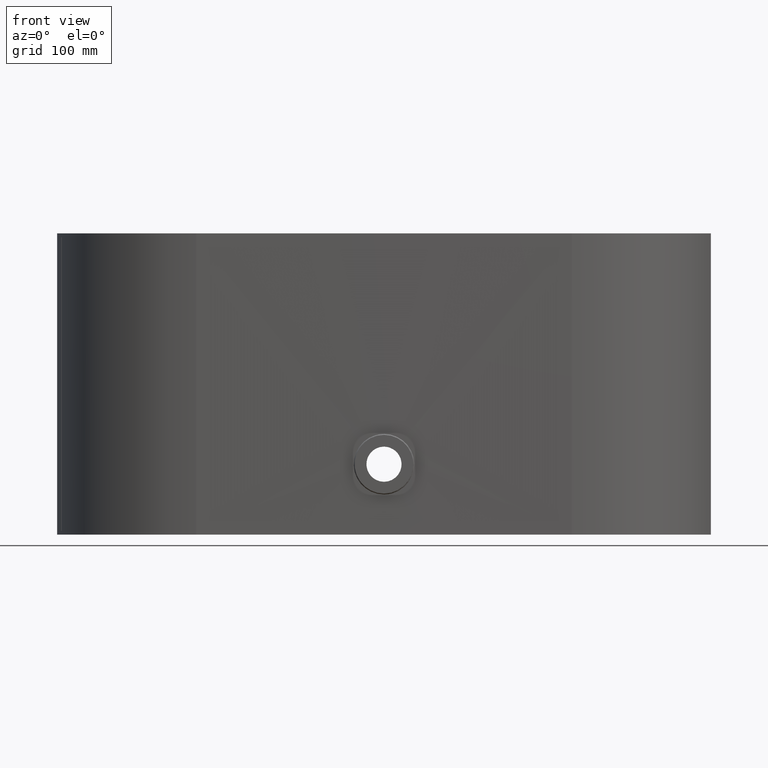
[diagram: clean part render]
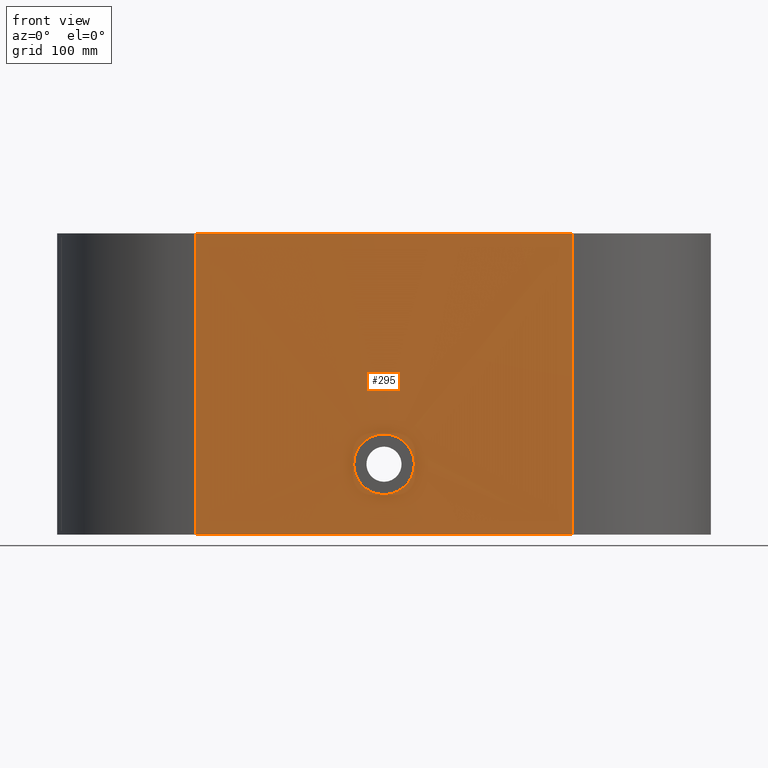
[diagram: same view with one face highlighted and labeled with its STEP entity id]
A machine part, front view. The second image highlights one B-rep face of the part: STEP entity #295.
In plain terms, the highlighted cylindrical surface (partial cylindrical patch) has radius 23055.6 mm, axis along (0, 0, 1).
Its self-contained STEP definition (entity closure, byte-faithful):
#9 = CARTESIAN_POINT ( 'NONE',  ( 38.70009875047286800, -149.9675199057542200, -1.244597046519988000 ) ) ;
#18 = CARTESIAN_POINT ( 'NONE',  ( 33.59199768303922400, -149.9755712169628300, 19.41157435358687200 ) ) ;
#101 = DIRECTION ( 'NONE',  ( 0.0000000000000000000, 0.0000000000000000000, 1.000000000000000000 ) ) ;
#158 = CARTESIAN_POINT ( 'NONE',  ( 10.62978009139014700, -149.9975575525250200, 37.23075293164738800 ) ) ;
#219 = CARTESIAN_POINT ( 'NONE',  ( 23.66206101838241700, -149.9879544328544500, -30.74615220908320300 ) ) ;
#233 = CARTESIAN_POINT ( 'NONE',  ( 21.02307596783754600, -149.9904211825721900, -32.51437475303873700 ) ) ;
#245 = CARTESIAN_POINT ( 'NONE',  ( 37.42746742628610700, -149.9696238641132600, -9.981412683385476800 ) ) ;
#253 = CIRCLE ( 'NONE', #1985, 23055.62499999943600 ) ;
#254 = CARTESIAN_POINT ( 'NONE',  ( 37.72035395886719300, -149.9691449443140000, 8.809400445550638300 ) ) ;
#260 = VERTEX_POINT ( 'NONE', #1451 ) ;
#295 = ADVANCED_FACE ( 'NONE', ( #2352, #2175 ), #1055, .T. ) ;
#297 = EDGE_LOOP ( 'NONE', ( #595, #1233 ) ) ;
#299 = CARTESIAN_POINT ( 'NONE',  ( 20.48389105736301700, -149.9909069869984300, -32.85674138711831200 ) ) ;
#391 = EDGE_CURVE ( 'NONE', #1151, #1462, #2634, .T. ) ;
#478 = CARTESIAN_POINT ( 'NONE',  ( 15.96774228296823000, -149.9944999937198100, 35.28950780525031700 ) ) ;
#485 = CARTESIAN_POINT ( 'NONE',  ( 19.38903103423919600, -149.9918537252613900, -33.51439714548857300 ) ) ;
#487 = EDGE_CURVE ( 'NONE', #1751, #1307, #707, .T. ) ;
#489 = CARTESIAN_POINT ( 'NONE',  ( 23.61936689673984800, -149.9879990428701100, 30.77966225824151500 ) ) ;
#499 = CARTESIAN_POINT ( 'NONE',  ( 33.61773540777270600, -149.9755333458815000, -19.36611166164674800 ) ) ;
#535 = B_SPLINE_CURVE_WITH_KNOTS ( 'NONE', 3,
 ( #984, #2411, #2402, #2401, #2397, #2392, #2391, #2388, #2384, #2380, #2379, #2376, #2375, #2373, #2368, #2364, #2361, #2358, #2357, #2354, #2353, #2349, #2346, #2345, #2340, #2339, #2333, #2328, #2325, #2323, #2319, #2310, #2303, #2298, #2294, #2292, #2291, #2288, #2285, #2370, #2387, #2394, #2410, #2419, #2280, #2275, #2272, #2268, #2264, #2261, #2259, #2256, #2255, #2248, #2243, #2242, #2236, #2235, #2234, #2231, #2227, #2224, #2218, #2215 ),
 .UNSPECIFIED., .F., .F.,
 ( 4, 2, 2, 2, 2, 2, 2, 2, 2, 2, 2, 2, 2, 2, 2, 2, 2, 2, 2, 2, 2, 2, 2, 2, 2, 2, 2, 2, 2, 2, 2, 4 ),
 ( 0.0000000000000000000, 0.007564771984882054900, 0.01134715797732308500, 0.01512954396976411700, 0.02269431595464616400, 0.02458550895086667300, 0.02647670194708717800, 0.03025908793952819500, 0.03782385992441021600, 0.03971505292063072500, 0.04160624591685124100, 0.04538863190929227900, 0.04917101790173331700, 0.05106221089795384000, 0.05295340389417435600, 0.06051817587905645300, 0.06430056187149750500, 0.06619175486771802800, 0.06808294786393855000, 0.07564771984882064100, 0.07753891284504115000, 0.07943010584126165800, 0.08321249183370270400, 0.09077726381858476600, 0.09455964981102579800, 0.09834203580346682900, 0.1021244217959078600, 0.1059068077883488800, 0.1134715797732309500, 0.1153627727694514500, 0.1172539657656719700, 0.1210363517581130200 ),
 .UNSPECIFIED. ) ;
#582 = CARTESIAN_POINT ( 'NONE',  ( 1.519356940613465500E-008, -149.9999999999977000, 38.71320343559543200 ) ) ;
#595 = ORIENTED_EDGE ( 'NONE', *, *, #391, .T. ) ;
#615 = CARTESIAN_POINT ( 'NONE',  ( 30.70796224879476100, -149.9795530304681100, 23.58434916725473600 ) ) ;
#638 = VECTOR ( 'NONE', #101, 1000.000000000000000 ) ;
#673 = CARTESIAN_POINT ( 'NONE',  ( -2.793754109194857500E-012, 22905.62499999944000, -90.00000000000000000 ) ) ;
#697 = CARTESIAN_POINT ( 'NONE',  ( 18.83568025470620500, -149.9923127158546400, -33.82836906262736700 ) ) ;
#701 = CARTESIAN_POINT ( 'NONE',  ( 36.85784744141761800, -149.9705393463563600, 11.86308020194943500 ) ) ;
#705 = CARTESIAN_POINT ( 'NONE',  ( 17.15828430605634500, -149.9936424138202800, -34.72676749214236500 ) ) ;
#707 = CIRCLE ( 'NONE', #746, 23055.62499999943600 ) ;
#709 = CARTESIAN_POINT ( 'NONE',  ( 2.526098702976564700, -149.9999999999960500, 38.71320343197760400 ) ) ;
#715 = CARTESIAN_POINT ( 'NONE',  ( 36.69358829448977100, -149.9708035321183100, -12.41046529277572400 ) ) ;
#720 = AXIS2_PLACEMENT_3D ( 'NONE', #2300, #3083, #2530 ) ;
#722 = CARTESIAN_POINT ( 'NONE',  ( 37.41281185787567400, -149.9696476992132300, 10.03683671424382400 ) ) ;
#731 = ORIENTED_EDGE ( 'NONE', *, *, #1257, .F. ) ;
#746 = AXIS2_PLACEMENT_3D ( 'NONE', #673, #977, #3064 ) ;
#788 = CARTESIAN_POINT ( 'NONE',  ( 240.1562457615603400, -148.7491862199910000, -75.00000000000000000 ) ) ;
#799 = DIRECTION ( 'NONE',  ( 1.000000000000000000, 0.0000000000000000000, 0.0000000000000000000 ) ) ;
#815 = CARTESIAN_POINT ( 'NONE',  ( 10.01712815719774100, -149.9978322024925300, 37.40031550402252900 ) ) ;
#842 = CARTESIAN_POINT ( 'NONE',  ( 18.78345653945534000, -149.9923553013226500, 33.85742342208160900 ) ) ;
#871 = CARTESIAN_POINT ( 'NONE',  ( -7.323706392903472600E-006, -149.9999999999993500, -38.71320343559465000 ) ) ;
#892 = EDGE_LOOP ( 'NONE', ( #1006, #731, #1927, #3183 ) ) ;
#906 = CARTESIAN_POINT ( 'NONE',  ( 38.40694456811215900, -149.9680104269498900, -5.034715578704307000 ) ) ;
#917 = CARTESIAN_POINT ( 'NONE',  ( 16.01680595868481700, -149.9944659358395100, -35.26745194409593200 ) ) ;
#930 = LINE ( 'NONE', #1924, #2873 ) ;
#934 = CARTESIAN_POINT ( 'NONE',  ( 38.59196354097537100, -149.9677012249769900, -3.146631064238883300 ) ) ;
#946 = CARTESIAN_POINT ( 'NONE',  ( 20.42775663394427700, -149.9909567586283600, 32.89165785392756900 ) ) ;
#977 = DIRECTION ( 'NONE',  ( 0.0000000000000000000, 0.0000000000000000000, 1.000000000000000000 ) ) ;
#984 = CARTESIAN_POINT ( 'NONE',  ( -7.323706392903472600E-006, -149.9999999999993500, -38.71320343559465000 ) ) ;
#1006 = ORIENTED_EDGE ( 'NONE', *, *, #1141, .T. ) ;
#1055 = CYLINDRICAL_SURFACE ( 'NONE', #720, 23055.62499999943600 ) ;
#1103 = CARTESIAN_POINT ( 'NONE',  ( 29.10023904703639300, -149.9816493803073700, 25.56530512351908900 ) ) ;
#1141 = EDGE_CURVE ( 'NONE', #1307, #1154, #1644, .T. ) ;
#1149 = DIRECTION ( 'NONE',  ( 0.0000000000000000000, 0.0000000000000000000, 1.000000000000000000 ) ) ;
#1150 = CARTESIAN_POINT ( 'NONE',  ( 13.68829826172756200, -149.9959659727756200, -36.23452762927841800 ) ) ;
#1151 = VERTEX_POINT ( 'NONE', #582 ) ;
#1154 = VERTEX_POINT ( 'NONE', #3133 ) ;
#1160 = CARTESIAN_POINT ( 'NONE',  ( 12.50136891935557400, -149.9966424617442400, -36.66116979377615300 ) ) ;
#1170 = CARTESIAN_POINT ( 'NONE',  ( 29.14002922969076400, -149.9815991699725000, -25.52017523834434000 ) ) ;
#1182 = CARTESIAN_POINT ( 'NONE',  ( 38.22253919924257600, -149.9683178500686400, -6.282360201004409300 ) ) ;
#1233 = ORIENTED_EDGE ( 'NONE', *, *, #1848, .T. ) ;
#1257 = EDGE_CURVE ( 'NONE', #260, #1154, #253, .T. ) ;
#1261 = DIRECTION ( 'NONE',  ( 0.0000000000000000000, 0.0000000000000000000, 1.000000000000000000 ) ) ;
#1307 = VERTEX_POINT ( 'NONE', #3165 ) ;
#1341 = CARTESIAN_POINT ( 'NONE',  ( 31.83256794526226200, -149.9780272918012500, 22.04283633453150400 ) ) ;
#1351 = CARTESIAN_POINT ( 'NONE',  ( 19.33567787279060100, -149.9918984988423700, 33.54522891487825100 ) ) ;
#1405 = CARTESIAN_POINT ( 'NONE',  ( 10.07574525624046300, -149.9978065984178700, -37.38456928639111300 ) ) ;
#1428 = CARTESIAN_POINT ( 'NONE',  ( 31.51520622484019900, -149.9784712514863000, -22.52082277710835000 ) ) ;
#1443 = CARTESIAN_POINT ( 'NONE',  ( 38.71270840744066500, -149.9674987157383700, 2.585388885612992300 ) ) ;
#1451 = CARTESIAN_POINT ( 'NONE',  ( -240.1562457615723400, -148.7491862200585900, 295.0000000000000600 ) ) ;
#1452 = CARTESIAN_POINT ( 'NONE',  ( 36.65663141122926300, -149.9708604051342000, 12.47101644016430400 ) ) ;
#1462 = VERTEX_POINT ( 'NONE', #871 ) ;
#1561 = CARTESIAN_POINT ( 'NONE',  ( 8.779374518811694700, -149.9983367527162800, 37.71005596464446100 ) ) ;
#1644 = LINE ( 'NONE', #788, #638 ) ;
#1665 = CARTESIAN_POINT ( 'NONE',  ( 10.68646196150927400, -149.9975313077004000, -37.21453572580580300 ) ) ;
#1668 = CARTESIAN_POINT ( 'NONE',  ( 30.31351182019831100, -149.9800754515093800, 24.08918575528392800 ) ) ;
#1676 = CARTESIAN_POINT ( 'NONE',  ( 8.842605592026952600, -149.9983125263807200, -37.69526394888069400 ) ) ;
#1687 = CARTESIAN_POINT ( 'NONE',  ( 30.76035911685208300, -149.9794942938005400, -23.54208113277727000 ) ) ;
#1702 = CARTESIAN_POINT ( 'NONE',  ( 38.46049833297507100, -149.9679261029059200, 5.098037327014398400 ) ) ;
#1711 = CARTESIAN_POINT ( 'NONE',  ( -240.1562457615723400, -148.7491862200585900, -90.00000000000000000 ) ) ;
#1751 = VERTEX_POINT ( 'NONE', #1711 ) ;
#1848 = EDGE_CURVE ( 'NONE', #1462, #1151, #535, .T. ) ;
#1924 = CARTESIAN_POINT ( 'NONE',  ( -240.1562457615723400, -148.7491862200585900, -75.00000000000000000 ) ) ;
#1927 = ORIENTED_EDGE ( 'NONE', *, *, #2283, .F. ) ;
#1941 = CARTESIAN_POINT ( 'NONE',  ( 8.218807206725983900, -149.9985435923509000, -37.83618327391141600 ) ) ;
#1943 = CARTESIAN_POINT ( 'NONE',  ( 35.99687692417562300, -149.9719002003263900, 14.26363340754511800 ) ) ;
#1950 = CARTESIAN_POINT ( 'NONE',  ( 34.80588015453804500, -149.9737481103390500, -17.14159885959053000 ) ) ;
#1985 = AXIS2_PLACEMENT_3D ( 'NONE', #2311, #1261, #799 ) ;
#2044 = CARTESIAN_POINT ( 'NONE',  ( 25.56988555353762000, -149.9858899989714600, 29.17737422127993300 ) ) ;
#2175 = FACE_OUTER_BOUND ( 'NONE', #892, .T. ) ;
#2198 = CARTESIAN_POINT ( 'NONE',  ( 5.088244096114534500, -149.9995745516446000, -38.46228407893001800 ) ) ;
#2213 = CARTESIAN_POINT ( 'NONE',  ( 37.73276247452313500, -149.9691246204196200, -8.755701830864081700 ) ) ;
#2215 = CARTESIAN_POINT ( 'NONE',  ( 1.519356940613465500E-008, -149.9999999999977000, 38.71320343559543200 ) ) ;
#2218 = CARTESIAN_POINT ( 'NONE',  ( -1.263359227450326700, -149.9999999999985500, 38.71320343740476500 ) ) ;
#2224 = CARTESIAN_POINT ( 'NONE',  ( -2.530633023885055600, -149.9998961675069300, 38.65152477326538600 ) ) ;
#2227 = CARTESIAN_POINT ( 'NONE',  ( -4.437614658125843500, -149.9995816994859000, 38.46335156583637600 ) ) ;
#2231 = CARTESIAN_POINT ( 'NONE',  ( -5.071612713073006900, -149.9994507589051400, 38.38487357039488000 ) ) ;
#2234 = CARTESIAN_POINT ( 'NONE',  ( -6.328692687994552200, -149.9991399649868200, 38.19775684143589700 ) ) ;
#2235 = CARTESIAN_POINT ( 'NONE',  ( -6.952963077411462600, -149.9989599240265100, 38.08900649112079200 ) ) ;
#2236 = CARTESIAN_POINT ( 'NONE',  ( -10.05333957114100100, -149.9979415490558700, 37.47062035787175200 ) ) ;
#2242 = CARTESIAN_POINT ( 'NONE',  ( -12.46707102033851200, -149.9967486655793000, 36.73904449895308500 ) ) ;
#2243 = CARTESIAN_POINT ( 'NONE',  ( -15.98640918941577600, -149.9944874815765300, 35.28138306292251500 ) ) ;
#2248 = CARTESIAN_POINT ( 'NONE',  ( -17.14726950186374300, -149.9936506783915000, 34.73213992189256800 ) ) ;
#2255 = CARTESIAN_POINT ( 'NONE',  ( -19.38667565979270400, -149.9918763962489300, 33.53378119428818100 ) ) ;
#2256 = CARTESIAN_POINT ( 'NONE',  ( -20.47033705409093300, -149.9909363622416800, 32.88317933717389300 ) ) ;
#2259 = CARTESIAN_POINT ( 'NONE',  ( -22.56710972489968000, -149.9889793608258800, 31.48131816773857500 ) ) ;
#2261 = CARTESIAN_POINT ( 'NONE',  ( -23.58019775165823600, -149.9879623662271200, 30.73002568381211200 ) ) ;
#2264 = CARTESIAN_POINT ( 'NONE',  ( -25.53522161222438700, -149.9858799704723800, 29.12592420981527800 ) ) ;
#2268 = CARTESIAN_POINT ( 'NONE',  ( -26.47875590826385000, -149.9848126270446800, 28.27156355330698600 ) ) ;
#2272 = CARTESIAN_POINT ( 'NONE',  ( -29.18872543007559300, -149.9815941217085500, 25.56042817729681400 ) ) ;
#2275 = CARTESIAN_POINT ( 'NONE',  ( -30.78892335282914800, -149.9794845469415100, 23.60495742356899700 ) ) ;
#2280 = CARTESIAN_POINT ( 'NONE',  ( -32.89161815953394100, -149.9765487199788400, 20.45833634253370200 ) ) ;
#2283 = EDGE_CURVE ( 'NONE', #1751, #260, #930, .T. ) ;
#2285 = CARTESIAN_POINT ( 'NONE',  ( -36.74428658894853300, -149.9707402541355900, 12.45470590980276200 ) ) ;
#2288 = CARTESIAN_POINT ( 'NONE',  ( -37.47560639336467100, -149.9695480435642900, 10.04134988198178400 ) ) ;
#2291 = CARTESIAN_POINT ( 'NONE',  ( -38.09334558030287400, -149.9685307012110800, 6.937890320877492000 ) ) ;
#2292 = CARTESIAN_POINT ( 'NONE',  ( -38.20199888869561300, -149.9683507822908300, 6.312838521186421300 ) ) ;
#2294 = CARTESIAN_POINT ( 'NONE',  ( -38.38887365860546200, -149.9680403825200900, 5.053826990777935200 ) ) ;
#2298 = CARTESIAN_POINT ( 'NONE',  ( -38.46723217081191100, -149.9679096728638100, 4.418092042850972200 ) ) ;
#2300 = CARTESIAN_POINT ( 'NONE',  ( -2.793754109194857500E-012, 22905.62499999944000, -75.00000000000000000 ) ) ;
#2303 = CARTESIAN_POINT ( 'NONE',  ( -38.65418944169297800, -149.9675972376202500, 2.514399978029114600 ) ) ;
#2310 = CARTESIAN_POINT ( 'NONE',  ( -38.71534166720190500, -149.9674942939794300, 1.248615733948906600 ) ) ;
#2311 = CARTESIAN_POINT ( 'NONE',  ( -2.793754109194857500E-012, 22905.62499999944000, 295.0000000000000600 ) ) ;
#2319 = CARTESIAN_POINT ( 'NONE',  ( -38.71397661811025200, -149.9674965861661600, -2.539002455437497000 ) ) ;
#2323 = CARTESIAN_POINT ( 'NONE',  ( -38.46845815928100600, -149.9679128995537400, -5.051197745366221300 ) ) ;
#2325 = CARTESIAN_POINT ( 'NONE',  ( -37.84722995895541700, -149.9689360331032000, -8.174886121943989900 ) ) ;
#2328 = CARTESIAN_POINT ( 'NONE',  ( -37.70676154298302400, -149.9691663791542500, -8.800116480944584700 ) ) ;
#2333 = CARTESIAN_POINT ( 'NONE',  ( -37.39681099998157500, -149.9696712109245300, -10.03588170965475400 ) ) ;
#2339 = CARTESIAN_POINT ( 'NONE',  ( -37.22713896999291400, -149.9699460134097800, -10.64772310240986300 ) ) ;
#2340 = CARTESIAN_POINT ( 'NONE',  ( -36.67486245519793200, -149.9708333470296100, -12.46546473456484500 ) ) ;
#2345 = CARTESIAN_POINT ( 'NONE',  ( -36.24901453646283800, -149.9715089268863400, -13.65358941200870300 ) ) ;
#2346 = CARTESIAN_POINT ( 'NONE',  ( -35.28388072517022100, -149.9730061515095700, -15.98320918588540200 ) ) ;
#2349 = CARTESIAN_POINT ( 'NONE',  ( -34.74442547011340600, -149.9738280980388400, -17.12463466446361700 ) ) ;
#2352 = FACE_BOUND ( 'NONE', #297, .T. ) ;
#2353 = CARTESIAN_POINT ( 'NONE',  ( -33.84859622718734300, -149.9751548935270500, -18.80115621817371300 ) ) ;
#2354 = CARTESIAN_POINT ( 'NONE',  ( -33.53558245203869600, -149.9756127090966800, -19.35407584793846400 ) ) ;
#2357 = CARTESIAN_POINT ( 'NONE',  ( -32.88009042612958400, -149.9765568385472000, -20.44780350645645600 ) ) ;
#2358 = CARTESIAN_POINT ( 'NONE',  ( -32.53726749837363700, -149.9770435815841300, -20.98894116112201400 ) ) ;
#2361 = CARTESIAN_POINT ( 'NONE',  ( -30.76840921214995100, -149.9795127446954800, -23.63431925428907800 ) ) ;
#2364 = CARTESIAN_POINT ( 'NONE',  ( -29.16576989270182500, -149.9816215470838200, -25.58365506113445100 ) ) ;
#2368 = CARTESIAN_POINT ( 'NONE',  ( -26.48709170108285300, -149.9848026457918600, -28.26309328598614100 ) ) ;
#2370 = CARTESIAN_POINT ( 'NONE',  ( -35.53237033271737000, -149.9726207521757400, 15.38423955280414800 ) ) ;
#2373 = CARTESIAN_POINT ( 'NONE',  ( -25.54808056975166900, -149.9858661127440200, -29.11518300741368000 ) ) ;
#2375 = CARTESIAN_POINT ( 'NONE',  ( -24.06815701082278400, -149.9874426959474900, -30.32974851239265100 ) ) ;
#2376 = CARTESIAN_POINT ( 'NONE',  ( -23.56362530093866800, -149.9879642481026800, -30.72331251145507400 ) ) ;
#2379 = CARTESIAN_POINT ( 'NONE',  ( -22.54182770694214700, -149.9889859177495500, -31.48060158751627600 ) ) ;
#2380 = CARTESIAN_POINT ( 'NONE',  ( -22.02326454195971600, -149.9894874348343900, -31.84541530769830700 ) ) ;
#2384 = CARTESIAN_POINT ( 'NONE',  ( -19.39281259558767100, -149.9919400817772400, -33.60156725331498300 ) ) ;
#2387 = CARTESIAN_POINT ( 'NONE',  ( -35.27495640916738800, -149.9730163704331600, 15.96574654439763000 ) ) ;
#2388 = CARTESIAN_POINT ( 'NONE',  ( -17.16907013498354200, -149.9937264713908900, -34.79105875807876900 ) ) ;
#2391 = CARTESIAN_POINT ( 'NONE',  ( -13.65229452413515600, -149.9959877259620400, -36.24837860697244500 ) ) ;
#2392 = CARTESIAN_POINT ( 'NONE',  ( -12.44341139252537500, -149.9966741439513100, -36.68108254854063700 ) ) ;
#2394 = CARTESIAN_POINT ( 'NONE',  ( -34.72947021587639700, -149.9738445087334600, 17.11978630226674600 ) ) ;
#2397 = CARTESIAN_POINT ( 'NONE',  ( -10.01103123508318200, -149.9978586216475100, -37.41811171369926800 ) ) ;
#2401 = CARTESIAN_POINT ( 'NONE',  ( -8.784278865451874200, -149.9983597668430900, -37.72460309970865200 ) ) ;
#2402 = CARTESIAN_POINT ( 'NONE',  ( -5.073051132165184100, -149.9995746283102000, -38.46221360988801800 ) ) ;
#2410 = CARTESIAN_POINT ( 'NONE',  ( -34.44179852754056300, -149.9742763798445500, 17.69124800442883600 ) ) ;
#2411 = CARTESIAN_POINT ( 'NONE',  ( -2.557900413657400400, -149.9999999991873400, -38.71320295255092200 ) ) ;
#2419 = CARTESIAN_POINT ( 'NONE',  ( -33.54246157739741100, -149.9756081682213600, 19.37356755855108000 ) ) ;
#2465 = CARTESIAN_POINT ( 'NONE',  ( 25.60916858976540300, -149.9858463859091800, -29.14320626159880600 ) ) ;
#2477 = CARTESIAN_POINT ( 'NONE',  ( 2.557258315972811100, -150.0000000008128000, -38.71320391851835300 ) ) ;
#2488 = CARTESIAN_POINT ( 'NONE',  ( 36.26214233283116100, -149.9714883429605300, -13.61956415930552200 ) ) ;
#2530 = DIRECTION ( 'NONE',  ( 1.000000000000000000, 0.0000000000000000000, 0.0000000000000000000 ) ) ;
#2539 = CARTESIAN_POINT ( 'NONE',  ( 34.78186508251886300, -149.9737844013924900, 17.18897999650113200 ) ) ;
#2629 = CARTESIAN_POINT ( 'NONE',  ( 12.44948425672232200, -149.9966707046537000, 36.67898661574533700 ) ) ;
#2634 = B_SPLINE_CURVE_WITH_KNOTS ( 'NONE', 3,
 ( #3021, #709, #2934, #3014, #1561, #815, #158, #2629, #2667, #478, #3030, #842, #1351, #946, #3223, #489, #2044, #2968, #1103, #1668, #615, #3253, #1341, #18, #2539, #1943, #3260, #1452, #701, #722, #254, #1702, #1443, #3047, #9, #2766, #934, #906, #1182, #2213, #245, #715, #2488, #1950, #499, #1428, #1687, #1170, #3036, #2465, #219, #233, #299, #485, #697, #705, #917, #1150, #1160, #1665, #1405, #1676, #1941, #2198, #2477, #2724 ),
 .UNSPECIFIED., .F., .F.,
 ( 4, 2, 2, 2, 2, 2, 2, 2, 2, 2, 2, 2, 2, 2, 2, 2, 2, 2, 2, 2, 2, 2, 2, 2, 2, 2, 2, 2, 2, 2, 2, 2, 4 ),
 ( 0.1210363517581130200, 0.1285992681240061300, 0.1304899972154794100, 0.1323807263069526900, 0.1361621844898992200, 0.1399436426728457900, 0.1418343717643190700, 0.1437251008557923200, 0.1512880172216853900, 0.1550694754046319200, 0.1569602044961052000, 0.1588509335875784900, 0.1664138499534715500, 0.1683045790449448400, 0.1701953081364180900, 0.1739767663193646200, 0.1815396826852576600, 0.1834304117767309700, 0.1853211408682042300, 0.1891025990511507300, 0.1928840572340972900, 0.1966655154170438300, 0.2042284317829368700, 0.2080098899658834000, 0.2117913481488299400, 0.2193542645147230100, 0.2212449936061962600, 0.2231357226976695100, 0.2269171808806160500, 0.2306986390635625800, 0.2325893681550358400, 0.2344800972465090900, 0.2420430136124021300 ),
 .UNSPECIFIED. ) ;
#2667 = CARTESIAN_POINT ( 'NONE',  ( 13.63822823248356300, -149.9959956707727700, 36.25357063957376600 ) ) ;
#2724 = CARTESIAN_POINT ( 'NONE',  ( -7.323706392903472600E-006, -149.9999999999993500, -38.71320343559465000 ) ) ;
#2766 = CARTESIAN_POINT ( 'NONE',  ( 38.63836870195988400, -149.9676234404460900, -2.514499421329868100 ) ) ;
#2873 = VECTOR ( 'NONE', #1149, 1000.000000000000000 ) ;
#2934 = CARTESIAN_POINT ( 'NONE',  ( 5.036657655597630300, -149.9995848215917800, 38.46835556940617100 ) ) ;
#2968 = CARTESIAN_POINT ( 'NONE',  ( 28.24874313827531200, -149.9827114983345700, 26.50250236941639800 ) ) ;
#3014 = CARTESIAN_POINT ( 'NONE',  ( 8.155031777274601300, -149.9985661725689900, 37.84993494366225500 ) ) ;
#3021 = CARTESIAN_POINT ( 'NONE',  ( 1.519356940613465500E-008, -149.9999999999977000, 38.71320343559543200 ) ) ;
#3030 = CARTESIAN_POINT ( 'NONE',  ( 17.10859148167616100, -149.9936792605259100, 34.75104770078184700 ) ) ;
#3036 = CARTESIAN_POINT ( 'NONE',  ( 28.28778135153895300, -149.9826636307902300, -26.46091011777363600 ) ) ;
#3047 = CARTESIAN_POINT ( 'NONE',  ( 38.71541689865802700, -149.9674941676488500, -0.6051857507549924800 ) ) ;
#3064 = DIRECTION ( 'NONE',  ( 1.000000000000000000, 0.0000000000000000000, 0.0000000000000000000 ) ) ;
#3083 = DIRECTION ( 'NONE',  ( 0.0000000000000000000, 0.0000000000000000000, 1.000000000000000000 ) ) ;
#3133 = CARTESIAN_POINT ( 'NONE',  ( 240.1562457615603400, -148.7491862199910000, 295.0000000000000600 ) ) ;
#3165 = CARTESIAN_POINT ( 'NONE',  ( 240.1562457615603400, -148.7491862199910000, -90.00000000000000000 ) ) ;
#3183 = ORIENTED_EDGE ( 'NONE', *, *, #487, .T. ) ;
#3223 = CARTESIAN_POINT ( 'NONE',  ( 20.96904306136729400, -149.9904704407476600, 32.54927777568708100 ) ) ;
#3253 = CARTESIAN_POINT ( 'NONE',  ( 31.46701321860986100, -149.9785295488160600, 22.56170510841176800 ) ) ;
#3260 = CARTESIAN_POINT ( 'NONE',  ( 36.22613588919139000, -149.9715408409096000, 13.67114015180268900 ) ) ;